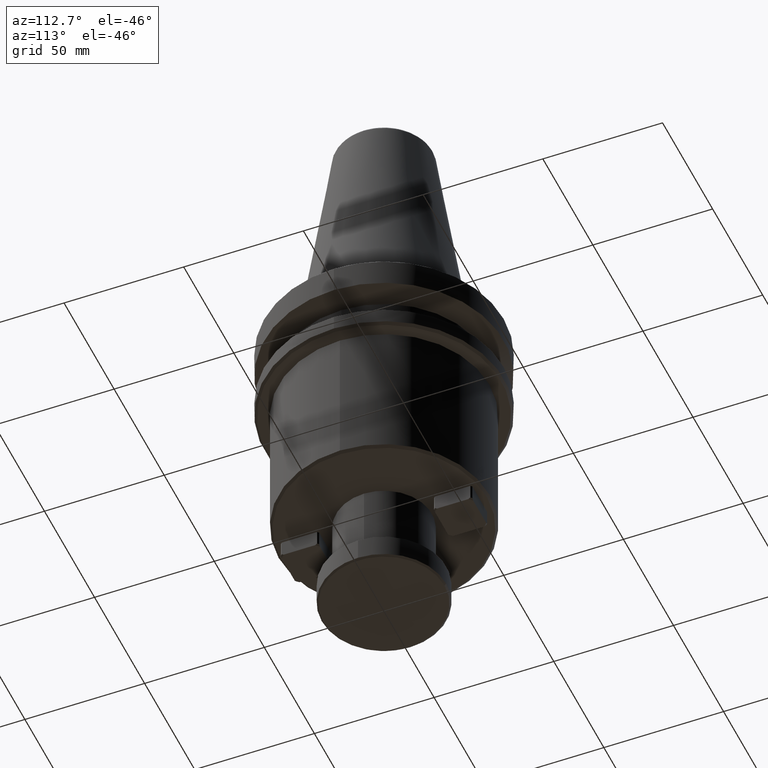
[diagram: clean part render]
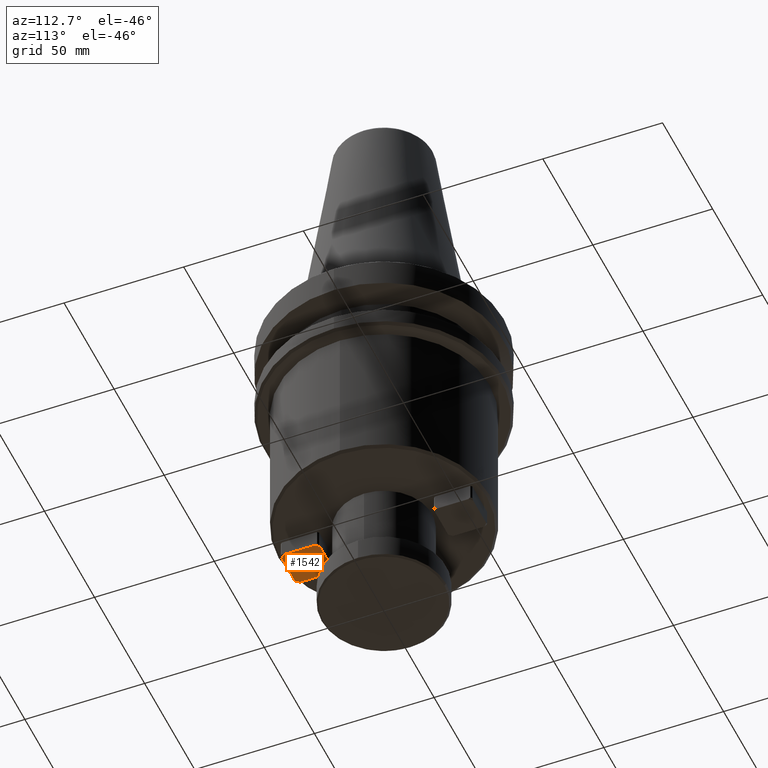
[diagram: same view with one face highlighted and labeled with its STEP entity id]
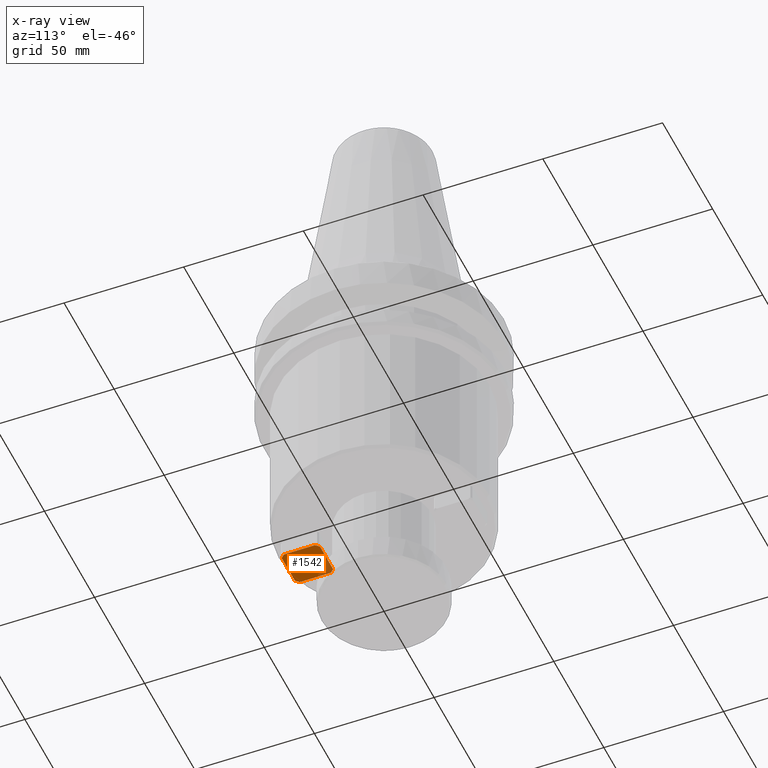
[diagram: x-ray of the same camera — body ghosted, the highlighted face saturated]
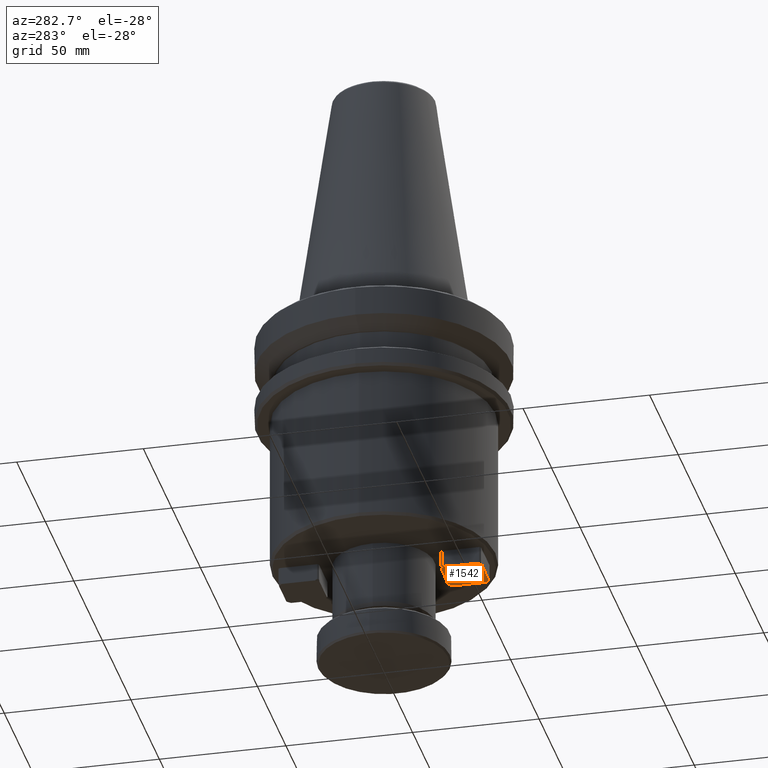
[diagram: same view with one face highlighted and labeled with its STEP entity id]
A machine part, auxiliary view. The second image highlights one B-rep face of the part: STEP entity #1542.
The next image is the same camera in x-ray: the body ghosted, the highlighted face saturated — about 11% of this face is hidden behind the body in this view.
A second angle (auxiliary view) of the same face is appended — the face is thin or edge-on in the first view.
In plain terms, the highlighted planar face has unit normal (0, 0, 1).
Its self-contained STEP definition (entity closure, byte-faithful):
#33 = VERTEX_POINT ( 'NONE', #1633 ) ;
#49 = EDGE_LOOP ( 'NONE', ( #1549, #1515, #1485, #1482, #1449, #1324, #1278, #1234 ) ) ;
#60 = CARTESIAN_POINT ( 'NONE',  ( 7.999999999999996400, -23.99999999999999300, -106.9999999999999900 ) ) ;
#101 = EDGE_CURVE ( 'NONE', #1751, #910, #413, .T. ) ;
#106 = VECTOR ( 'NONE', #828, 1000.000000000000100 ) ;
#115 = AXIS2_PLACEMENT_3D ( 'NONE', #504, #487, #485 ) ;
#146 = CARTESIAN_POINT ( 'NONE',  ( 7.999999999999992900, -25.44852813742379300, -106.9999999999999900 ) ) ;
#181 = CARTESIAN_POINT ( 'NONE',  ( -6.551471862576170800, -39.99999999999999300, -106.9999999999999900 ) ) ;
#229 = EDGE_CURVE ( 'NONE', #1578, #407, #1790, .T. ) ;
#366 = LINE ( 'NONE', #976, #862 ) ;
#367 = DIRECTION ( 'NONE',  ( -1.000000000000000000, -0.0000000000000000000, 0.0000000000000000000 ) ) ;
#389 = EDGE_CURVE ( 'NONE', #621, #910, #578, .T. ) ;
#394 = CARTESIAN_POINT ( 'NONE',  ( 7.999999999999992900, -39.99999999999999300, -106.9999999999999900 ) ) ;
#407 = VERTEX_POINT ( 'NONE', #2127 ) ;
#413 = LINE ( 'NONE', #584, #1685 ) ;
#445 = CARTESIAN_POINT ( 'NONE',  ( -6.551471862576199200, -23.99999999999999300, -106.9999999999999900 ) ) ;
#449 = VERTEX_POINT ( 'NONE', #1862 ) ;
#485 = DIRECTION ( 'NONE',  ( 1.000000000000000000, 0.0000000000000000000, -0.0000000000000000000 ) ) ;
#487 = DIRECTION ( 'NONE',  ( 0.0000000000000000000, 0.0000000000000000000, 1.000000000000000000 ) ) ;
#488 = PLANE ( 'NONE',  #115 ) ;
#504 = CARTESIAN_POINT ( 'NONE',  ( 0.0000000000000000000, 0.0000000000000000000, -106.9999999999999900 ) ) ;
#572 = FACE_OUTER_BOUND ( 'NONE', #49, .T. ) ;
#578 = LINE ( 'NONE', #1569, #106 ) ;
#584 = CARTESIAN_POINT ( 'NONE',  ( 7.999999999999996400, -23.99999999999999300, -106.9999999999999900 ) ) ;
#621 = VERTEX_POINT ( 'NONE', #2202 ) ;
#640 = EDGE_CURVE ( 'NONE', #33, #1578, #1202, .T. ) ;
#698 = DIRECTION ( 'NONE',  ( -1.000000000000000000, -0.0000000000000000000, 0.0000000000000000000 ) ) ;
#742 = DIRECTION ( 'NONE',  ( -2.168404344971008900E-016, -1.000000000000000000, 0.0000000000000000000 ) ) ;
#777 = VECTOR ( 'NONE', #1796, 1000.000000000000100 ) ;
#828 = DIRECTION ( 'NONE',  ( 0.7071067811865442400, 0.7071067811865507900, 0.0000000000000000000 ) ) ;
#840 = LINE ( 'NONE', #394, #1977 ) ;
#862 = VECTOR ( 'NONE', #899, 1000.000000000000000 ) ;
#899 = DIRECTION ( 'NONE',  ( -6.505213034913026600E-016, -1.000000000000000000, 0.0000000000000000000 ) ) ;
#910 = VERTEX_POINT ( 'NONE', #2394 ) ;
#976 = CARTESIAN_POINT ( 'NONE',  ( -7.999999999999996400, -23.99999999999999300, -106.9999999999999900 ) ) ;
#1115 = VECTOR ( 'NONE', #698, 1000.000000000000000 ) ;
#1202 = LINE ( 'NONE', #60, #1115 ) ;
#1234 = ORIENTED_EDGE ( 'NONE', *, *, #1311, .F. ) ;
#1278 = ORIENTED_EDGE ( 'NONE', *, *, #2166, .F. ) ;
#1311 = EDGE_CURVE ( 'NONE', #407, #449, #366, .T. ) ;
#1324 = ORIENTED_EDGE ( 'NONE', *, *, #1637, .T. ) ;
#1370 = VECTOR ( 'NONE', #2550, 1000.000000000000000 ) ;
#1383 = CARTESIAN_POINT ( 'NONE',  ( 7.999999999999994700, -25.44852813742379300, -106.9999999999999900 ) ) ;
#1395 = DIRECTION ( 'NONE',  ( -0.7071067811865644500, 0.7071067811865305900, 0.0000000000000000000 ) ) ;
#1449 = ORIENTED_EDGE ( 'NONE', *, *, #389, .F. ) ;
#1482 = ORIENTED_EDGE ( 'NONE', *, *, #101, .T. ) ;
#1485 = ORIENTED_EDGE ( 'NONE', *, *, #2669, .F. ) ;
#1500 = LINE ( 'NONE', #1383, #2674 ) ;
#1515 = ORIENTED_EDGE ( 'NONE', *, *, #640, .F. ) ;
#1542 = ADVANCED_FACE ( 'NONE', ( #572 ), #488, .F. ) ;
#1549 = ORIENTED_EDGE ( 'NONE', *, *, #229, .F. ) ;
#1569 = CARTESIAN_POINT ( 'NONE',  ( 6.551471862576207200, -39.99999999999999300, -106.9999999999999900 ) ) ;
#1578 = VERTEX_POINT ( 'NONE', #445 ) ;
#1633 = CARTESIAN_POINT ( 'NONE',  ( 6.551471862576126300, -23.99999999999999300, -106.9999999999999900 ) ) ;
#1637 = EDGE_CURVE ( 'NONE', #621, #1742, #840, .T. ) ;
#1685 = VECTOR ( 'NONE', #742, 1000.000000000000000 ) ;
#1742 = VERTEX_POINT ( 'NONE', #181 ) ;
#1751 = VERTEX_POINT ( 'NONE', #146 ) ;
#1790 = LINE ( 'NONE', #1943, #777 ) ;
#1796 = DIRECTION ( 'NONE',  ( -0.7071067811865454600, -0.7071067811865496800, 0.0000000000000000000 ) ) ;
#1862 = CARTESIAN_POINT ( 'NONE',  ( -8.000000000000001800, -38.55147186257616500, -106.9999999999999900 ) ) ;
#1943 = CARTESIAN_POINT ( 'NONE',  ( -6.551471862576202700, -23.99999999999999300, -106.9999999999999900 ) ) ;
#1977 = VECTOR ( 'NONE', #367, 1000.000000000000000 ) ;
#1980 = LINE ( 'NONE', #2554, #1370 ) ;
#2127 = CARTESIAN_POINT ( 'NONE',  ( -7.999999999999994700, -25.44852813742379300, -106.9999999999999900 ) ) ;
#2166 = EDGE_CURVE ( 'NONE', #449, #1742, #1980, .T. ) ;
#2202 = CARTESIAN_POINT ( 'NONE',  ( 6.551471862576208100, -39.99999999999998600, -106.9999999999999900 ) ) ;
#2394 = CARTESIAN_POINT ( 'NONE',  ( 7.999999999999994700, -38.55147186257619300, -106.9999999999999900 ) ) ;
#2550 = DIRECTION ( 'NONE',  ( 0.7071067811865492400, -0.7071067811865458000, 0.0000000000000000000 ) ) ;
#2554 = CARTESIAN_POINT ( 'NONE',  ( -8.000000000000007100, -38.55147186257616500, -106.9999999999999900 ) ) ;
#2669 = EDGE_CURVE ( 'NONE', #1751, #33, #1500, .T. ) ;
#2674 = VECTOR ( 'NONE', #1395, 1000.000000000000000 ) ;